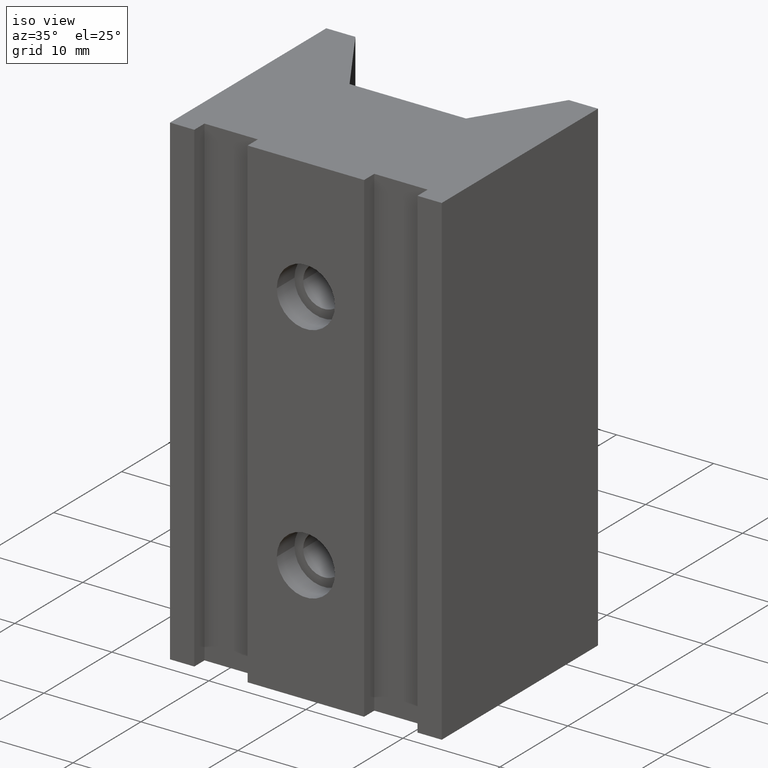
[diagram: clean part render]
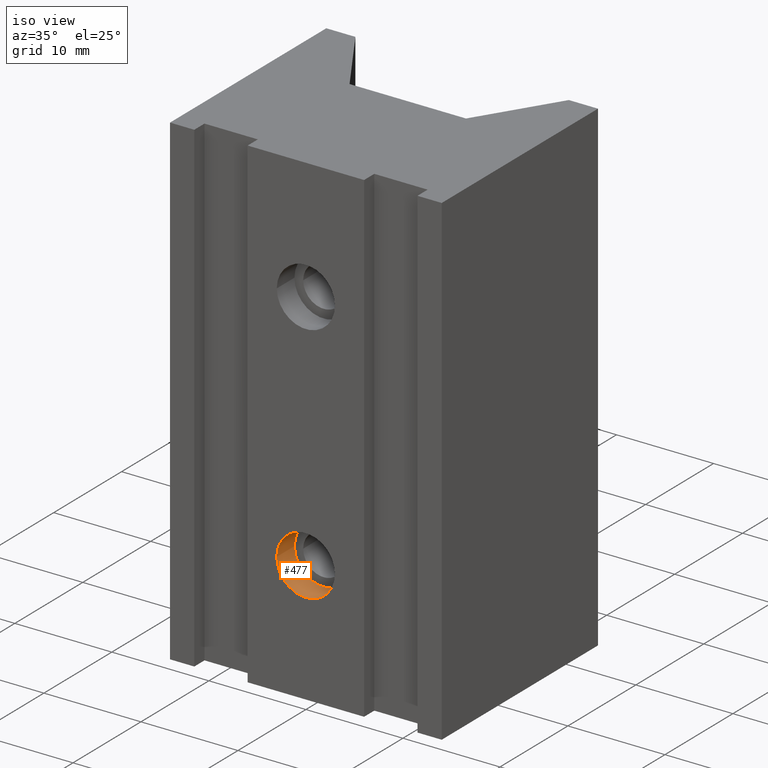
[diagram: same view with one face highlighted and labeled with its STEP entity id]
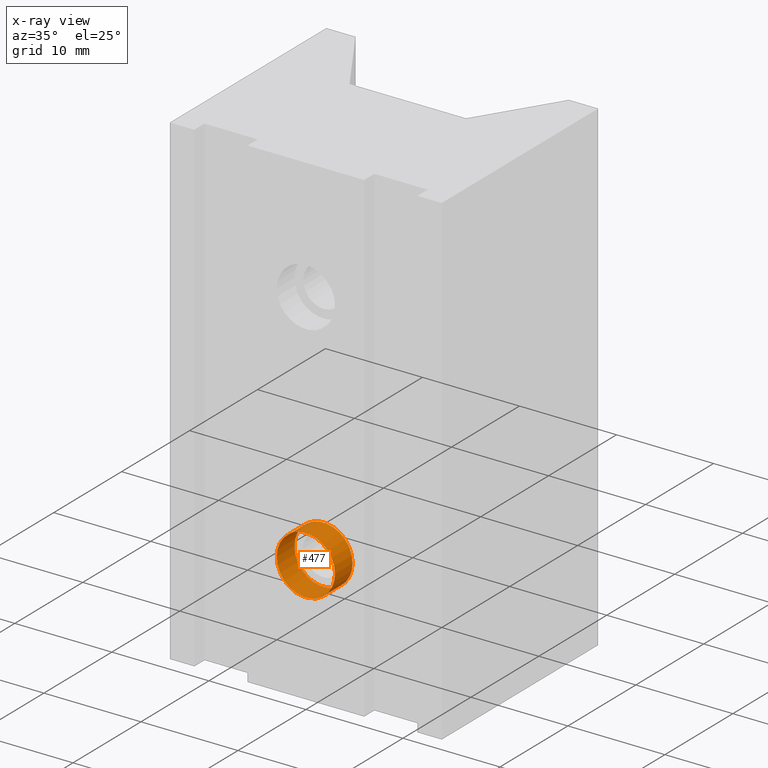
[diagram: x-ray of the same camera — body ghosted, the highlighted face saturated]
A machine part, iso view. The second image highlights one B-rep face of the part: STEP entity #477.
The next image is the same camera in x-ray: the body ghosted, the highlighted face saturated — about 0% of this face is hidden behind the body in this view.
In plain terms, the highlighted cylindrical surface (bore or boss wall) has radius 3 mm, axis along (0, -1, 0).
Its self-contained STEP definition (entity closure, byte-faithful):
#45=FACE_OUTER_BOUND('',#73,.T.);
#73=EDGE_LOOP('',(#339,#340,#341,#342));
#109=LINE('',#709,#163);
#163=VECTOR('',#574,3.);
#217=CIRCLE('',#529,3.);
#218=CIRCLE('',#530,3.);
#229=VERTEX_POINT('',#706);
#230=VERTEX_POINT('',#708);
#273=EDGE_CURVE('',#229,#229,#217,.T.);
#274=EDGE_CURVE('',#229,#230,#109,.T.);
#275=EDGE_CURVE('',#230,#230,#218,.T.);
#339=ORIENTED_EDGE('',*,*,#273,.F.);
#340=ORIENTED_EDGE('',*,*,#274,.T.);
#341=ORIENTED_EDGE('',*,*,#275,.F.);
#342=ORIENTED_EDGE('',*,*,#274,.F.);
#471=CYLINDRICAL_SURFACE('',#528,3.);
#477=ADVANCED_FACE('',(#45),#471,.F.);
#528=AXIS2_PLACEMENT_3D('',#705,#570,#571);
#529=AXIS2_PLACEMENT_3D('',#707,#572,#573);
#530=AXIS2_PLACEMENT_3D('',#710,#575,#576);
#570=DIRECTION('center_axis',(4.62592926927148E-16,-1.,0.));
#571=DIRECTION('ref_axis',(1.,4.62592926927148E-16,0.));
#572=DIRECTION('center_axis',(-4.62592926927148E-16,1.,0.));
#573=DIRECTION('ref_axis',(1.,4.62592926927148E-16,0.));
#574=DIRECTION('',(-4.62592926927148E-16,1.,0.));
#575=DIRECTION('center_axis',(4.62592926927148E-16,-1.,0.));
#576=DIRECTION('ref_axis',(1.,4.62592926927148E-16,0.));
#705=CARTESIAN_POINT('Origin',(-8.37293197738139E-15,1.3,-12.5));
#706=CARTESIAN_POINT('',(-3.00000000000001,-5.27355936696949E-15,-12.5));
#707=CARTESIAN_POINT('Origin',(-7.7715611723761E-15,-3.88578058618805E-15,
-12.5));
#708=CARTESIAN_POINT('',(-3.00000000000001,2.6,-12.5));
#709=CARTESIAN_POINT('',(-3.00000000000001,1.29999999999999,-12.5));
#710=CARTESIAN_POINT('Origin',(-8.97430278238668E-15,2.6,-12.5));